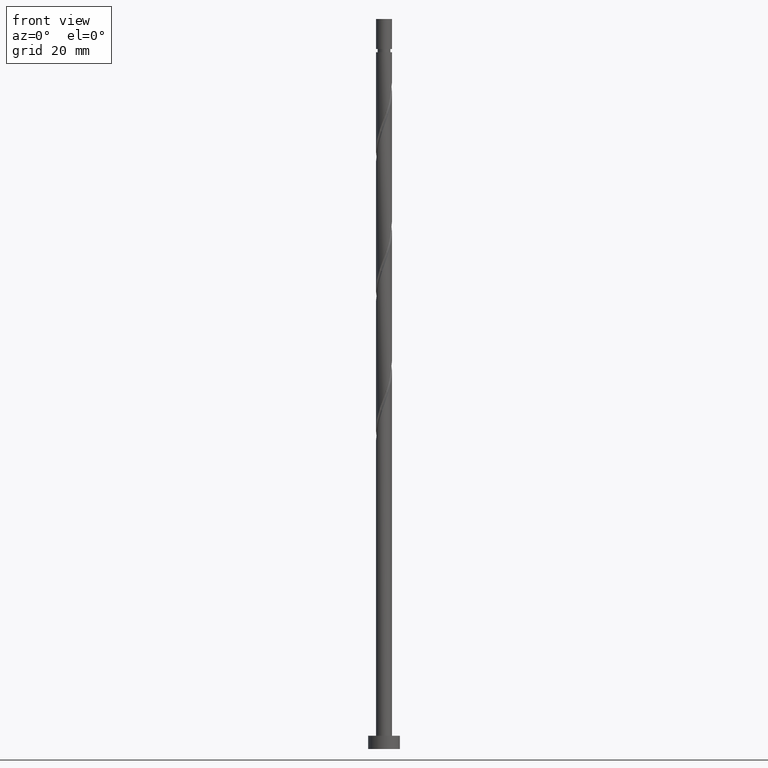
[diagram: clean part render]
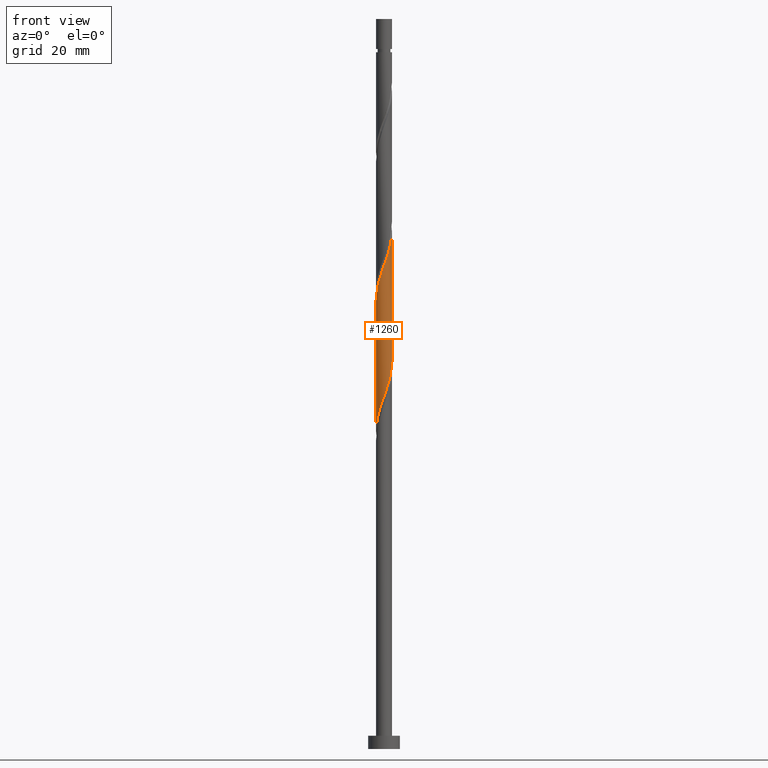
[diagram: same view with one face highlighted and labeled with its STEP entity id]
A machine part, front view. The second image highlights one B-rep face of the part: STEP entity #1260.
In plain terms, the highlighted cylindrical surface (edge-blend (fillet) strip) has radius 3 mm, axis along (-0, -0, -1).
Its self-contained STEP definition (entity closure, byte-faithful):
#15 = DIRECTION ( 'NONE',  ( -0.000000000000000000, -0.000000000000000000, -1.000000000000000000 ) ) ;
#73 = EDGE_CURVE ( 'NONE', #699, #552, #1096, .T. ) ;
#75 = CARTESIAN_POINT ( 'NONE',  ( -2.907873793385203243, -0.7377465701333718595, 121.8419641503445519 ) ) ;
#93 = ORIENTED_EDGE ( 'NONE', *, *, #73, .T. ) ;
#95 = AXIS2_PLACEMENT_3D ( 'NONE', #1915, #1360, #449 ) ;
#111 = EDGE_LOOP ( 'NONE', ( #1434, #1117, #93, #1886 ) ) ;
#142 = CARTESIAN_POINT ( 'NONE',  ( 3.000000000000000444, 3.673940397442060361E-16, 275.0000000000000000 ) ) ;
#190 = CARTESIAN_POINT ( 'NONE',  ( -2.594154378914896419, -1.544221415739432723, 173.4044641503445234 ) ) ;
#213 = CARTESIAN_POINT ( 'NONE',  ( -2.299807519258758148, -1.926365846447885222, 125.5919641503445234 ) ) ;
#241 = CARTESIAN_POINT ( 'NONE',  ( 2.516856822501209567, -1.667239772048623614, 190.2794641503444950 ) ) ;
#270 = CARTESIAN_POINT ( 'NONE',  ( 0.9282509055702992118, -2.872735104178516075, 184.6544641503444666 ) ) ;
#276 = CARTESIAN_POINT ( 'NONE',  ( 2.733444741546703138, -1.236236160654866190, 142.4669641503445234 ) ) ;
#281 = CARTESIAN_POINT ( 'NONE',  ( 2.999131382082425468, -0.07218693100826460707, 194.9669641503444950 ) ) ;
#293 = CARTESIAN_POINT ( 'NONE',  ( -1.544221415739432057, -2.594154378914893755, 128.4044641503445519 ) ) ;
#365 = VERTEX_POINT ( 'NONE', #962 ) ;
#388 = CARTESIAN_POINT ( 'NONE',  ( -0.4101078809741744990, -2.990997868343356902, 180.9044641503445519 ) ) ;
#411 = CARTESIAN_POINT ( 'NONE',  ( -0.07218693100826442666, -2.999131382082425468, 181.8419641503445519 ) ) ;
#431 = CARTESIAN_POINT ( 'NONE',  ( 2.940000000000000835, -0.5969924622639731782, 144.3419641503445519 ) ) ;
#449 = DIRECTION ( 'NONE',  ( -1.000000000000000000, 0.000000000000000000, 0.000000000000000000 ) ) ;
#503 = CARTESIAN_POINT ( 'NONE',  ( -2.999131382082420583, -0.07218693100826335807, 119.9669641503445519 ) ) ;
#520 = CARTESIAN_POINT ( 'NONE',  ( -2.733444741546707579, -1.236236160654866634, 172.4669641503446087 ) ) ;
#533 = CARTESIAN_POINT ( 'NONE',  ( -1.667239772048623392, -2.516856822501209567, 177.1544641503445234 ) ) ;
#552 = VERTEX_POINT ( 'NONE', #952 ) ;
#565 = EDGE_CURVE ( 'NONE', #699, #365, #1800, .T. ) ;
#578 = CARTESIAN_POINT ( 'NONE',  ( 2.999999999999999556, -6.343453746648592363E-16, 146.0164812282505693 ) ) ;
#594 = CARTESIAN_POINT ( 'NONE',  ( 0.4101078809741727782, -2.990997868343352906, 134.0294641503445519 ) ) ;
#622 =( BOUNDED_CURVE ( )  B_SPLINE_CURVE ( 2, ( #1324, #1180, #431, #1621, #276, #897, #1601, #1332, #1748, #1587, #1916, #1048, #860, #594, #1158, #1455, #1309, #1898, #1375, #293, #1225, #1577, #213, #644, #986, #1846, #75, #1125, #503, #1567, #655 ),
 .UNSPECIFIED., .F., .T. ) 
 B_SPLINE_CURVE_WITH_KNOTS ( ( 3, 2, 2, 2, 2, 2, 2, 2, 2, 2, 2, 2, 2, 2, 2, 3 ),
 ( 0.8045303401299220836, 0.8125000000000000000, 0.8214285714285713969, 0.8303571428571429047, 0.8392857142857143016, 0.8482142857142856984, 0.8571428571428570953, 0.8660714285714286031, 0.8750000000000000000, 0.8839285714285713969, 0.8928571428571429047, 0.9017857142857143016, 0.9107142857142856984, 0.9196428571428570953, 0.9285714285714286031, 0.9295303401299219725 ),
 .UNSPECIFIED. ) 
 CURVE ( )  GEOMETRIC_REPRESENTATION_ITEM ( )  RATIONAL_B_SPLINE_CURVE ( ( 0.9079949616362069653, 0.9039886423360699030, 0.9090909090909368162, 0.9033747362666115777, 0.9090909090909368162, 0.9033747362666115777, 0.9090909090909368162, 0.9033747362666115777, 0.9090909090909368162, 0.9033747362666115777, 0.9090909090909368162, 0.9033747362666115777, 0.9090909090909368162, 0.9033747362666115777, 0.9090909090909368162, 0.9033747362666115777, 0.9090909090909368162, 0.9033747362666115777, 0.9090909090909368162, 0.9033747362666115777, 0.9090909090909368162, 0.9033747362666115777, 0.9090909090909368162, 0.9033747362666115777, 0.9090909090909368162, 0.9033747362666115777, 0.9090909090909368162, 0.9033747362666115777, 0.9090909090909368162, 0.9084770030214787129, 0.9079949616362070763 ) ) 
 REPRESENTATION_ITEM ( '' )  );
#644 = CARTESIAN_POINT ( 'NONE',  ( -2.516856822501207791, -1.667239772048620283, 124.6544641503445376 ) ) ;
#655 = CARTESIAN_POINT ( 'NONE',  ( -3.000000000000000000, -8.044991928102567306E-15, 119.7664812282506119 ) ) ;
#674 = CARTESIAN_POINT ( 'NONE',  ( -2.389823149881026065, -1.813489815877872280, 174.3419641503445519 ) ) ;
#699 = VERTEX_POINT ( 'NONE', #1346 ) ;
#717 = EDGE_CURVE ( 'NONE', #987, #552, #622, .T. ) ;
#773 = CARTESIAN_POINT ( 'NONE',  ( -3.000000000000000444, 0.000000000000000000, 275.0000000000000000 ) ) ;
#823 = CARTESIAN_POINT ( 'NONE',  ( -2.940000000000004832, -0.5969924622639728451, 170.5919641503445803 ) ) ;
#833 = CARTESIAN_POINT ( 'NONE',  ( -1.926365846447889885, -2.299807519258761701, 176.2169641503446087 ) ) ;
#860 = CARTESIAN_POINT ( 'NONE',  ( 0.7377465701333717485, -2.907873793385203243, 134.9669641503445234 ) ) ;
#875 = CARTESIAN_POINT ( 'NONE',  ( 3.000000000000005329, -8.433062039662192640E-16, 195.1674470724385060 ) ) ;
#890 = CARTESIAN_POINT ( 'NONE',  ( 1.813489815877872058, -2.389823149881026065, 187.4669641503445519 ) ) ;
#897 = CARTESIAN_POINT ( 'NONE',  ( 2.594154378914893755, -1.544221415739432057, 141.5294641503445519 ) ) ;
#933 = DIRECTION ( 'NONE',  ( -0.000000000000000000, -0.000000000000000000, -1.000000000000000000 ) ) ;
#952 = CARTESIAN_POINT ( 'NONE',  ( -3.000000000000000000, -8.044991928102567306E-15, 119.7664812282506119 ) ) ;
#961 = CARTESIAN_POINT ( 'NONE',  ( -1.065385259292573217, -2.824749718427055800, 179.0294641503445519 ) ) ;
#962 = CARTESIAN_POINT ( 'NONE',  ( 3.000000000000005329, -8.433062039662193626E-16, 195.1674470724384776 ) ) ;
#986 = CARTESIAN_POINT ( 'NONE',  ( -2.670803270464130019, -1.366312515670595751, 123.7169641503445661 ) ) ;
#987 = VERTEX_POINT ( 'NONE', #578 ) ;
#1024 = CARTESIAN_POINT ( 'NONE',  ( 2.907873793385206351, -0.7377465701333739689, 193.0919641503445519 ) ) ;
#1048 = CARTESIAN_POINT ( 'NONE',  ( 1.065385259292570552, -2.824749718427052692, 135.9044641503444950 ) ) ;
#1096 = LINE ( 'NONE', #773, #1427 ) ;
#1117 = ORIENTED_EDGE ( 'NONE', *, *, #565, .F. ) ;
#1125 = CARTESIAN_POINT ( 'NONE',  ( -2.990997868343352906, -0.4101078809741730002, 120.9044641503445376 ) ) ;
#1144 = CARTESIAN_POINT ( 'NONE',  ( 0.5969924622639726230, -2.940000000000004832, 183.7169641503445803 ) ) ;
#1154 = CARTESIAN_POINT ( 'NONE',  ( -0.7377465701333737469, -2.907873793385206351, 179.9669641503445519 ) ) ;
#1158 = CARTESIAN_POINT ( 'NONE',  ( 0.07218693100826327480, -2.999131382082420583, 133.0919641503445519 ) ) ;
#1163 = CARTESIAN_POINT ( 'NONE',  ( 1.544221415739432501, -2.594154378914896419, 186.5294641503445519 ) ) ;
#1174 = CARTESIAN_POINT ( 'NONE',  ( 3.000000000000004885, -0.03609869149916603015, 195.0670843842133877 ) ) ;
#1180 = CARTESIAN_POINT ( 'NONE',  ( 3.000000000000000444, -0.3015113445777645174, 145.1782101492869685 ) ) ;
#1225 = CARTESIAN_POINT ( 'NONE',  ( -1.813489815877870504, -2.389823149881022069, 127.4669641503445234 ) ) ;
#1260 = ADVANCED_FACE ( 'NONE', ( #1308 ), #1495, .T. ) ;
#1304 = CARTESIAN_POINT ( 'NONE',  ( 1.236236160654866634, -2.733444741546707579, 185.5919641503445803 ) ) ;
#1308 = FACE_OUTER_BOUND ( 'NONE', #111, .T. ) ;
#1309 = CARTESIAN_POINT ( 'NONE',  ( -0.5969924622639728451, -2.940000000000000835, 131.2169641503445519 ) ) ;
#1317 = VECTOR ( 'NONE', #15, 1000.000000000000000 ) ;
#1324 = CARTESIAN_POINT ( 'NONE',  ( 2.999999999999999556, -6.343453746648592363E-16, 146.0164812282505693 ) ) ;
#1332 = CARTESIAN_POINT ( 'NONE',  ( 2.185491920847151714, -2.082758216016308506, 139.6544641503445519 ) ) ;
#1346 = CARTESIAN_POINT ( 'NONE',  ( -3.000000000000005329, 4.253845453634912213E-16, 168.9174470724385060 ) ) ;
#1360 = DIRECTION ( 'NONE',  ( -0.000000000000000000, -0.000000000000000000, -1.000000000000000000 ) ) ;
#1375 = CARTESIAN_POINT ( 'NONE',  ( -1.236236160654865524, -2.733444741546703138, 129.3419641503445519 ) ) ;
#1399 = CARTESIAN_POINT ( 'NONE',  ( -3.000000000000005329, 4.253845453634912213E-16, 168.9174470724385060 ) ) ;
#1408 = CARTESIAN_POINT ( 'NONE',  ( -2.872735104178516075, -0.9282509055702994338, 171.5294641503444950 ) ) ;
#1417 = CARTESIAN_POINT ( 'NONE',  ( -1.366312515670598415, -2.670803270464133128, 178.0919641503445803 ) ) ;
#1427 = VECTOR ( 'NONE', #933, 1000.000000000000000 ) ;
#1434 = ORIENTED_EDGE ( 'NONE', *, *, #1522, .F. ) ;
#1451 = CARTESIAN_POINT ( 'NONE',  ( 2.990997868343356902, -0.4101078809741744990, 194.0294641503445519 ) ) ;
#1455 = CARTESIAN_POINT ( 'NONE',  ( -0.2657340189576463674, -3.007264895821488260, 132.1544641503445803 ) ) ;
#1473 = CARTESIAN_POINT ( 'NONE',  ( 2.299807519258761257, -1.926365846447889885, 189.3419641503445803 ) ) ;
#1495 = CYLINDRICAL_SURFACE ( 'NONE', #95, 3.000000000000000444 ) ;
#1522 = EDGE_CURVE ( 'NONE', #365, #987, #1649, .T. ) ;
#1567 = CARTESIAN_POINT ( 'NONE',  ( -2.999999999999999556, -0.03609869149917525194, 119.8668439164756734 ) ) ;
#1577 = CARTESIAN_POINT ( 'NONE',  ( -2.082758216016308506, -2.185491920847151714, 126.5294641503445519 ) ) ;
#1587 = CARTESIAN_POINT ( 'NONE',  ( 1.667239772048620283, -2.516856822501207791, 137.7794641503445519 ) ) ;
#1601 = CARTESIAN_POINT ( 'NONE',  ( 2.389823149881022069, -1.813489815877870504, 140.5919641503444950 ) ) ;
#1621 = CARTESIAN_POINT ( 'NONE',  ( 2.872735104178513410, -0.9282509055702995449, 143.4044641503444950 ) ) ;
#1625 = CARTESIAN_POINT ( 'NONE',  ( 2.824749718427055800, -1.065385259292573217, 192.1544641503445519 ) ) ;
#1649 = LINE ( 'NONE', #142, #1317 ) ;
#1690 = CARTESIAN_POINT ( 'NONE',  ( -3.000000000000006661, -0.3015113445777534706, 169.7557181514020215 ) ) ;
#1710 = CARTESIAN_POINT ( 'NONE',  ( -2.185491920847155267, -2.082758216016309838, 175.2794641503445234 ) ) ;
#1748 = CARTESIAN_POINT ( 'NONE',  ( 1.926365846447885222, -2.299807519258758592, 138.7169641503445234 ) ) ;
#1770 = CARTESIAN_POINT ( 'NONE',  ( 2.082758216016309838, -2.185491920847155267, 188.4044641503444666 ) ) ;
#1800 =( BOUNDED_CURVE ( )  B_SPLINE_CURVE ( 2, ( #1399, #1690, #823, #1408, #520, #190, #674, #1710, #833, #533, #1417, #961, #1154, #388, #411, #1872, #1144, #270, #1304, #1163, #890, #1770, #1473, #241, #1910, #1625, #1024, #1451, #281, #1174, #875 ),
 .UNSPECIFIED., .F., .T. ) 
 B_SPLINE_CURVE_WITH_KNOTS ( ( 3, 2, 2, 2, 2, 2, 2, 2, 2, 2, 2, 2, 2, 2, 2, 3 ),
 ( 0.3045303401299218060, 0.3125000000000000000, 0.3214285714285713969, 0.3303571428571429047, 0.3392857142857143016, 0.3482142857142856984, 0.3571428571428570953, 0.3660714285714286031, 0.3750000000000000000, 0.3839285714285713969, 0.3928571428571429047, 0.4017857142857143016, 0.4107142857142856984, 0.4196428571428570953, 0.4285714285714286031, 0.4295303401299222501 ),
 .UNSPECIFIED. ) 
 CURVE ( )  GEOMETRIC_REPRESENTATION_ITEM ( )  RATIONAL_B_SPLINE_CURVE ( ( 0.9079949616362128495, 0.9039886423360756762, 0.9090909090909424783, 0.9033747362666175729, 0.9090909090909424783, 0.9033747362666175729, 0.9090909090909424783, 0.9033747362666175729, 0.9090909090909424783, 0.9033747362666175729, 0.9090909090909424783, 0.9033747362666175729, 0.9090909090909424783, 0.9033747362666175729, 0.9090909090909424783, 0.9033747362666175729, 0.9090909090909424783, 0.9033747362666175729, 0.9090909090909424783, 0.9033747362666175729, 0.9090909090909424783, 0.9033747362666175729, 0.9090909090909424783, 0.9033747362666175729, 0.9090909090909424783, 0.9033747362666175729, 0.9090909090909424783, 0.9033747362666175729, 0.9090909090909424783, 0.9084770030214842640, 0.9079949616362125164 ) ) 
 REPRESENTATION_ITEM ( '' )  );
#1846 = CARTESIAN_POINT ( 'NONE',  ( -2.824749718427052692, -1.065385259292570552, 122.7794641503445661 ) ) ;
#1872 = CARTESIAN_POINT ( 'NONE',  ( 0.2657340189576455902, -3.007264895821491812, 182.7794641503444950 ) ) ;
#1886 = ORIENTED_EDGE ( 'NONE', *, *, #717, .F. ) ;
#1898 = CARTESIAN_POINT ( 'NONE',  ( -0.9282509055702994338, -2.872735104178513410, 130.2794641503445519 ) ) ;
#1910 = CARTESIAN_POINT ( 'NONE',  ( 2.670803270464133128, -1.366312515670599081, 191.2169641503446371 ) ) ;
#1915 = CARTESIAN_POINT ( 'NONE',  ( 0.000000000000000000, 0.000000000000000000, 275.0000000000000000 ) ) ;
#1916 = CARTESIAN_POINT ( 'NONE',  ( 1.366312515670595085, -2.670803270464130019, 136.8419641503445234 ) ) ;